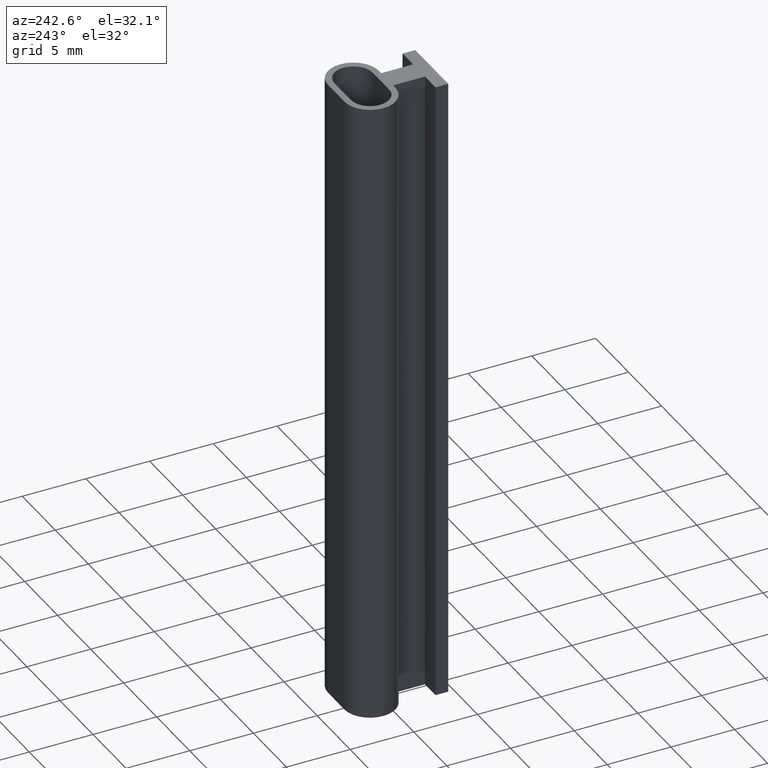
[diagram: clean part render]
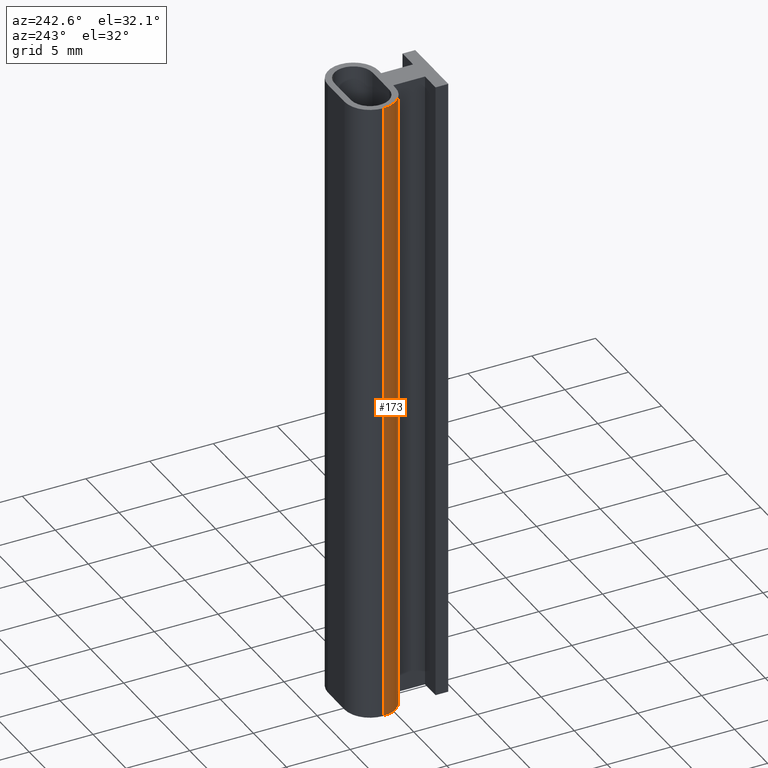
[diagram: same view with one face highlighted and labeled with its STEP entity id]
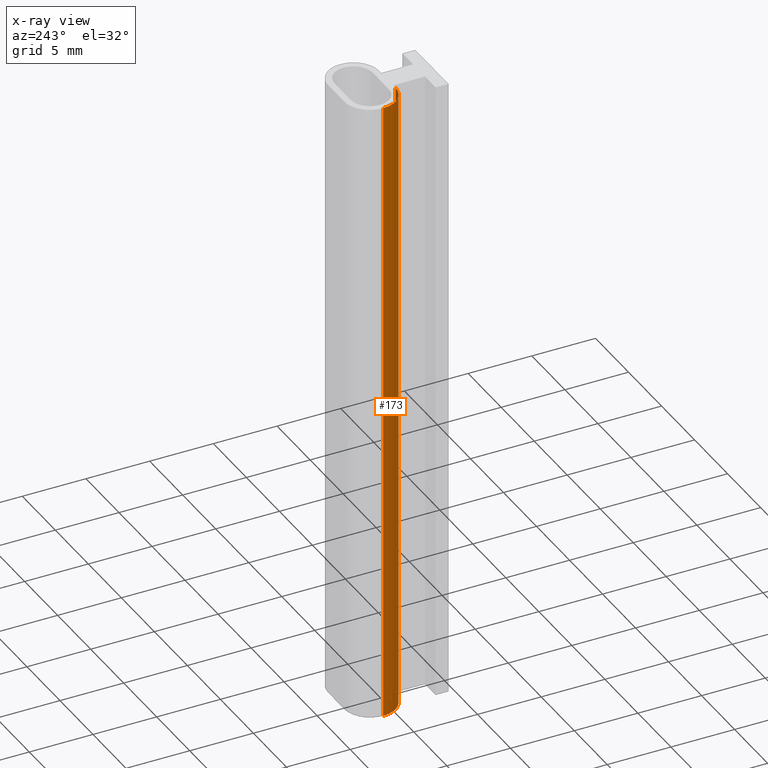
[diagram: x-ray of the same camera — body ghosted, the highlighted face saturated]
A machine part, auxiliary view. The second image highlights one B-rep face of the part: STEP entity #173.
The next image is the same camera in x-ray: the body ghosted, the highlighted face saturated — about 0% of this face is hidden behind the body in this view.
In plain terms, the highlighted cylindrical surface (edge-blend (fillet) strip) has radius 2 mm, axis along (0, 0, 1).
Its self-contained STEP definition (entity closure, byte-faithful):
#113=CARTESIAN_POINT('',(-3.250000000000000,1.500000000000000,-50.0));
#114=VERTEX_POINT('',#113);
#122=CARTESIAN_POINT('',(-3.250000000000000,1.500000000000000,0.0));
#123=VERTEX_POINT('',#122);
#124=CARTESIAN_POINT('',(-3.250000000000000,1.500000000000000,-50.0));
#125=DIRECTION('',(0.0,0.0,1.0));
#126=VECTOR('',#125,50.0);
#127=LINE('',#124,#126);
#128=EDGE_CURVE('',#114,#123,#127,.T.);
#141=CARTESIAN_POINT('',(-1.250000000000000,1.500000000000000,-50.0));
#142=DIRECTION('',(0.0,0.0,1.0));
#143=DIRECTION('',(-1.0,0.0,0.0));
#144=AXIS2_PLACEMENT_3D('',#141,#142,#143);
#145=CYLINDRICAL_SURFACE('',#144,2.0);
#146=CARTESIAN_POINT('',(-1.250000000000000,-0.500000000000000,-50.0));
#147=VERTEX_POINT('',#146);
#148=CARTESIAN_POINT('',(-1.250000000000000,1.500000000000000,-50.0));
#149=DIRECTION('',(0.0,0.0,1.0));
#150=DIRECTION('',(-1.0,0.0,0.0));
#151=AXIS2_PLACEMENT_3D('',#148,#149,#150);
#152=CIRCLE('',#151,2.0);
#153=EDGE_CURVE('',#114,#147,#152,.T.);
#154=ORIENTED_EDGE('',*,*,#153,.T.);
#155=CARTESIAN_POINT('',(-1.250000000000000,-0.500000000000000,0.0));
#156=VERTEX_POINT('',#155);
#157=CARTESIAN_POINT('',(-1.250000000000000,-0.500000000000000,-50.0));
#158=DIRECTION('',(0.0,0.0,1.0));
#159=VECTOR('',#158,50.0);
#160=LINE('',#157,#159);
#161=EDGE_CURVE('',#147,#156,#160,.T.);
#162=ORIENTED_EDGE('',*,*,#161,.T.);
#163=CARTESIAN_POINT('',(-1.250000000000000,1.500000000000000,0.0));
#164=DIRECTION('',(0.0,0.0,1.0));
#165=DIRECTION('',(-1.0,0.0,0.0));
#166=AXIS2_PLACEMENT_3D('',#163,#164,#165);
#167=CIRCLE('',#166,2.0);
#168=EDGE_CURVE('',#123,#156,#167,.T.);
#169=ORIENTED_EDGE('',*,*,#168,.F.);
#170=ORIENTED_EDGE('',*,*,#128,.F.);
#171=EDGE_LOOP('',(#154,#162,#169,#170));
#172=FACE_OUTER_BOUND('',#171,.T.);
#173=ADVANCED_FACE('',(#172),#145,.T.);